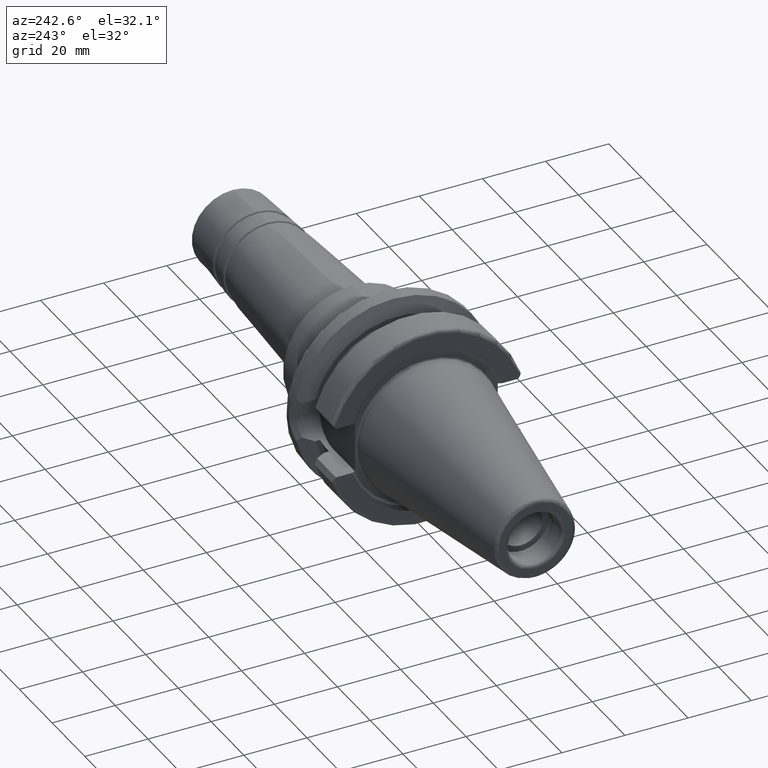
[diagram: clean part render]
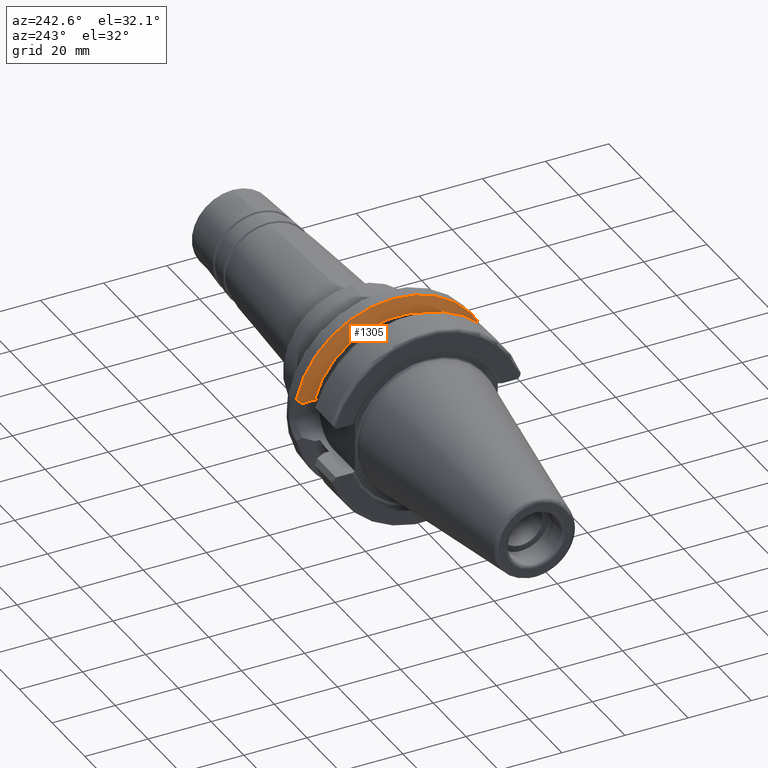
[diagram: same view with one face highlighted and labeled with its STEP entity id]
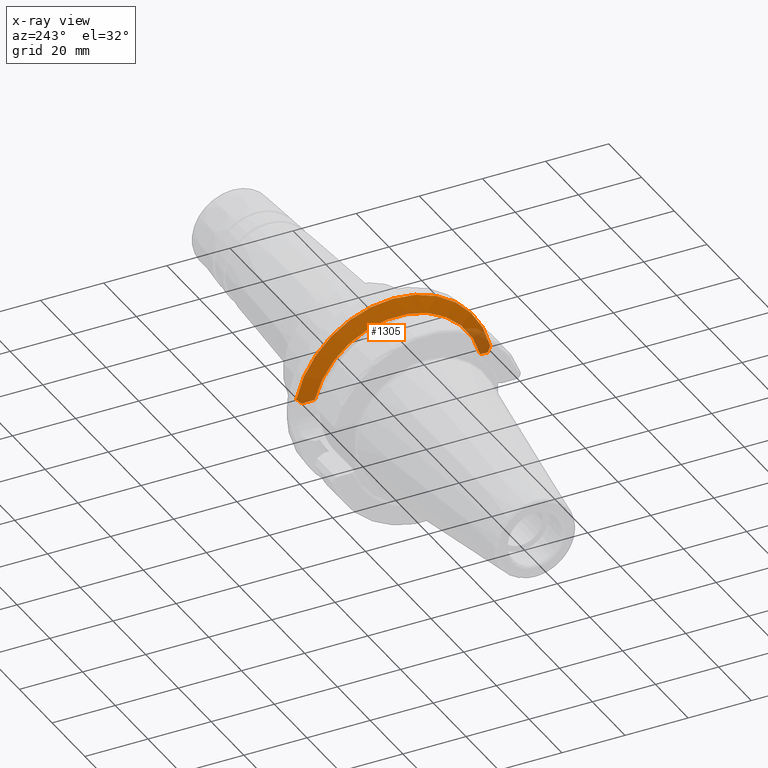
[diagram: x-ray of the same camera — body ghosted, the highlighted face saturated]
A machine part, auxiliary view. The second image highlights one B-rep face of the part: STEP entity #1305.
The next image is the same camera in x-ray: the body ghosted, the highlighted face saturated — about 8% of this face is hidden behind the body in this view.
In plain terms, the highlighted conical surface has half-angle 60.125 deg.
Its self-contained STEP definition (entity closure, byte-faithful):
#30=B_SPLINE_CURVE_WITH_KNOTS('',3,(#2120,#2121,#2122,#2123,#2124,#2125,
#2126,#2127,#2128,#2129,#2130,#2131,#2132),.UNSPECIFIED.,.F.,.F.,(4,3,3,
3,4),(0.,0.0731506810736418,0.104649820621099,0.17112209757583,0.209508940919131),
 .UNSPECIFIED.);
#40=B_SPLINE_CURVE_WITH_KNOTS('',3,(#2326,#2327,#2328,#2329,#2330,#2331,
#2332,#2333,#2334,#2335,#2336,#2337,#2338),.UNSPECIFIED.,.F.,.F.,(4,3,3,
3,4),(0.,0.066453158711785,0.104853023510292,0.177983430078857,0.209498394873819),
 .UNSPECIFIED.);
#42=B_SPLINE_CURVE_WITH_KNOTS('',3,(#2428,#2429,#2430,#2431,#2432,#2433),
 .UNSPECIFIED.,.F.,.F.,(4,2,4),(1.4642102789956,1.54570476603971,1.82831600250635),
 .UNSPECIFIED.);
#47=B_SPLINE_CURVE_WITH_KNOTS('',3,(#2521,#2522,#2523,#2524,#2525,#2526),
 .UNSPECIFIED.,.F.,.F.,(4,2,4),(3.3443816511031,3.62699288756974,3.70848737461385),
 .UNSPECIFIED.);
#251=CONICAL_SURFACE('',#1481,29.2970358274569,1.04937921276159);
#321=FACE_OUTER_BOUND('',#406,.T.);
#406=EDGE_LOOP('',(#1152,#1153,#1154,#1155,#1156,#1157));
#470=CIRCLE('',#1421,31.5000000000001);
#497=CIRCLE('',#1482,27.0940716549138);
#552=VERTEX_POINT('',#2111);
#553=VERTEX_POINT('',#2119);
#557=VERTEX_POINT('',#2149);
#583=VERTEX_POINT('',#2325);
#606=VERTEX_POINT('',#2427);
#622=VERTEX_POINT('',#2519);
#698=EDGE_CURVE('',#552,#553,#30,.T.);
#704=EDGE_CURVE('',#557,#552,#470,.T.);
#738=EDGE_CURVE('',#583,#557,#40,.T.);
#772=EDGE_CURVE('',#606,#553,#42,.T.);
#805=EDGE_CURVE('',#583,#622,#47,.T.);
#806=EDGE_CURVE('',#622,#606,#497,.T.);
#1152=ORIENTED_EDGE('',*,*,#698,.F.);
#1153=ORIENTED_EDGE('',*,*,#704,.F.);
#1154=ORIENTED_EDGE('',*,*,#738,.F.);
#1155=ORIENTED_EDGE('',*,*,#805,.T.);
#1156=ORIENTED_EDGE('',*,*,#806,.T.);
#1157=ORIENTED_EDGE('',*,*,#772,.T.);
#1305=ADVANCED_FACE('',(#321),#251,.T.);
#1421=AXIS2_PLACEMENT_3D('',#2159,#1688,#1689);
#1481=AXIS2_PLACEMENT_3D('',#2527,#1856,#1857);
#1482=AXIS2_PLACEMENT_3D('',#2528,#1858,#1859);
#1688=DIRECTION('center_axis',(1.,0.,0.));
#1689=DIRECTION('ref_axis',(0.,0.,-1.));
#1856=DIRECTION('center_axis',(1.,0.,0.));
#1857=DIRECTION('ref_axis',(0.,1.,0.));
#1858=DIRECTION('center_axis',(1.,0.,0.));
#1859=DIRECTION('ref_axis',(0.,0.,-1.));
#2111=CARTESIAN_POINT('',(21.6309636926619,-30.7261128229805,6.93945176433102));
#2119=CARTESIAN_POINT('',(20.7197593187301,-29.382324732277,5.61358863864523));
#2120=CARTESIAN_POINT('Ctrl Pts',(21.6309636926619,-30.7261128229805,6.93945176433103));
#2121=CARTESIAN_POINT('Ctrl Pts',(21.5238339856428,-30.5695121491318,6.78630067423762));
#2122=CARTESIAN_POINT('Ctrl Pts',(21.4169592784421,-30.4128404199052,6.63265120293111));
#2123=CARTESIAN_POINT('Ctrl Pts',(21.3105305033278,-30.2563346083301,6.47868470749077));
#2124=CARTESIAN_POINT('Ctrl Pts',(21.2647016089144,-30.1889422296613,6.41238577418863));
#2125=CARTESIAN_POINT('Ctrl Pts',(21.2189548618225,-30.1215804376254,6.34602839655281));
#2126=CARTESIAN_POINT('Ctrl Pts',(21.1733030871153,-30.0542673557316,6.27962857959426));
#2127=CARTESIAN_POINT('Ctrl Pts',(21.0769646646882,-29.9122173224101,6.13950579890808));
#2128=CARTESIAN_POINT('Ctrl Pts',(20.9808489178349,-29.7700885299286,5.99890233767342));
#2129=CARTESIAN_POINT('Ctrl Pts',(20.8851377800934,-29.6281082801534,5.85799018832492));
#2130=CARTESIAN_POINT('Ctrl Pts',(20.8298658890284,-29.5461166009804,5.77661532274159));
#2131=CARTESIAN_POINT('Ctrl Pts',(20.7747281328589,-29.4641741974733,5.69513801393111));
#2132=CARTESIAN_POINT('Ctrl Pts',(20.7197531070639,-29.3823227488288,5.6135954544323));
#2149=CARTESIAN_POINT('',(21.6309636926619,30.7261128229805,6.93945176433102));
#2159=CARTESIAN_POINT('Origin',(21.6309636926619,0.,0.));
#2325=CARTESIAN_POINT('',(20.7197593187301,29.382324732277,5.61358863864523));
#2326=CARTESIAN_POINT('Ctrl Pts',(20.7197515894297,29.3823222023351,5.61359762229939));
#2327=CARTESIAN_POINT('Ctrl Pts',(20.8149264355491,29.5240261146061,5.75476612102477));
#2328=CARTESIAN_POINT('Ctrl Pts',(20.9105912690111,29.6660033681186,5.89573769514358));
#2329=CARTESIAN_POINT('Ctrl Pts',(21.0065888437666,29.8080348169476,6.03632495637328));
#2330=CARTESIAN_POINT('Ctrl Pts',(21.0620609080454,29.8901074909618,6.11756310860358));
#2331=CARTESIAN_POINT('Ctrl Pts',(21.1176433000706,29.972198010001,6.19867342831795));
#2332=CARTESIAN_POINT('Ctrl Pts',(21.1732991947734,30.0542619764308,6.27962385104281));
#2333=CARTESIAN_POINT('Ctrl Pts',(21.2792927504514,30.2105482358,6.43378942836527));
#2334=CARTESIAN_POINT('Ctrl Pts',(21.3858010607312,30.3670979926274,6.58772453026809));
#2335=CARTESIAN_POINT('Ctrl Pts',(21.4926516371797,30.5236804762112,6.74123636577551));
#2336=CARTESIAN_POINT('Ctrl Pts',(21.538698039943,30.5911584472658,6.80739106555952));
#2337=CARTESIAN_POINT('Ctrl Pts',(21.5848074729308,30.6586423209757,6.87346749569907));
#2338=CARTESIAN_POINT('Ctrl Pts',(21.6309636926619,30.7261128229805,6.93945176433103));
#2427=CARTESIAN_POINT('',(19.1,-26.201311395455,6.89782574439221));
#2428=CARTESIAN_POINT('Ctrl Pts',(19.1,-26.201311395455,6.89782574439221));
#2429=CARTESIAN_POINT('Ctrl Pts',(19.2210929544554,-26.438473693351,6.82497151762395));
#2430=CARTESIAN_POINT('Ctrl Pts',(19.3406963650697,-26.6728819297428,6.74867108656041));
#2431=CARTESIAN_POINT('Ctrl Pts',(19.867744184216,-27.7064624084632,6.39234949299032));
#2432=CARTESIAN_POINT('Ctrl Pts',(20.3012218741369,-28.558364647748,6.04376984297407));
#2433=CARTESIAN_POINT('Ctrl Pts',(20.7197593187301,-29.382324732277,5.61358863864523));
#2519=CARTESIAN_POINT('',(19.1,26.201311395455,6.89782574439221));
#2521=CARTESIAN_POINT('Ctrl Pts',(20.7197593187301,29.382324732277,5.61358863864523));
#2522=CARTESIAN_POINT('Ctrl Pts',(20.3012218741369,28.558364647748,6.04376984297407));
#2523=CARTESIAN_POINT('Ctrl Pts',(19.867744184216,27.7064624084632,6.39234949299032));
#2524=CARTESIAN_POINT('Ctrl Pts',(19.3406963650697,26.6728819297428,6.74867108656041));
#2525=CARTESIAN_POINT('Ctrl Pts',(19.2210929544554,26.438473693351,6.82497151762395));
#2526=CARTESIAN_POINT('Ctrl Pts',(19.1,26.201311395455,6.89782574439221));
#2527=CARTESIAN_POINT('Origin',(20.3654818463309,0.,0.));
#2528=CARTESIAN_POINT('Origin',(19.1,0.,0.));